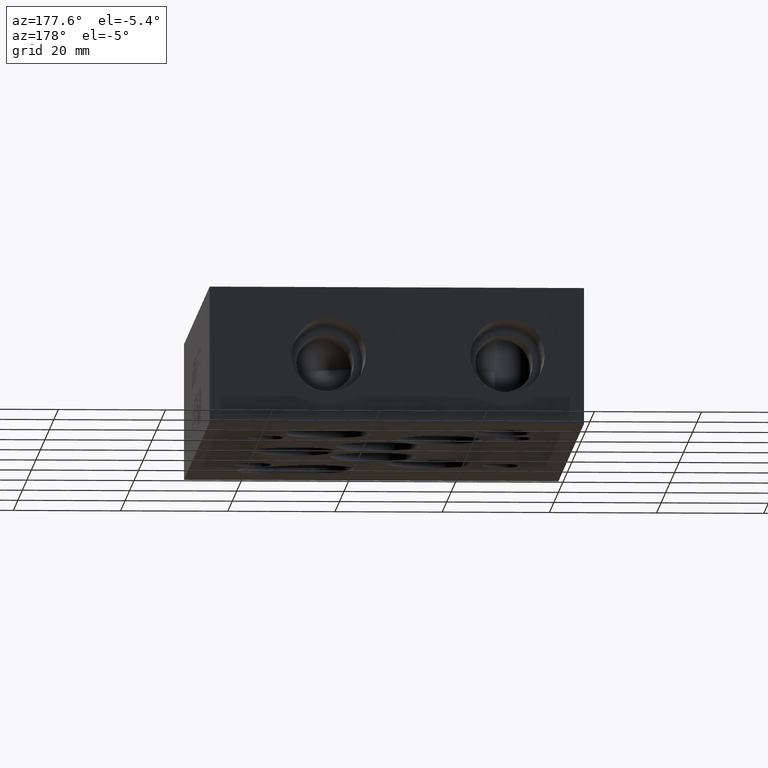
[diagram: clean part render]
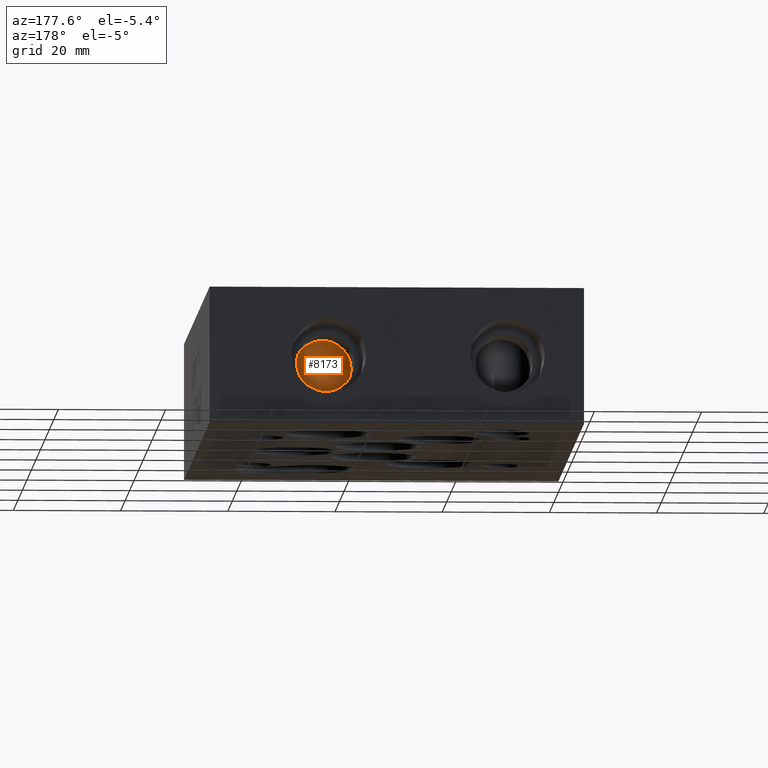
[diagram: same view with one face highlighted and labeled with its STEP entity id]
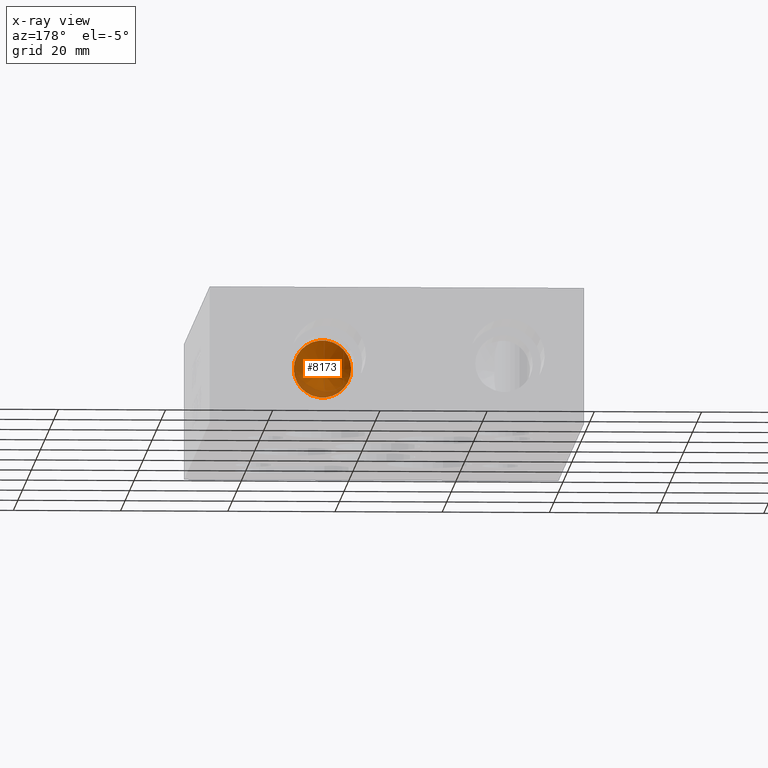
[diagram: x-ray of the same camera — body ghosted, the highlighted face saturated]
A machine part, auxiliary view. The second image highlights one B-rep face of the part: STEP entity #8173.
The next image is the same camera in x-ray: the body ghosted, the highlighted face saturated — about 12% of this face is hidden behind the body in this view.
In plain terms, the highlighted conical surface has half-angle 60 deg.
Its self-contained STEP definition (entity closure, byte-faithful):
#19=CONICAL_SURFACE('',#8599,5.3594,1.04719755577195);
#674=CIRCLE('',#8598,5.3594);
#1110=FACE_OUTER_BOUND('',#1574,.T.);
#1574=EDGE_LOOP('',(#7350,#7351,#7352));
#2510=LINE('',#13419,#3420);
#3420=VECTOR('',#10305,5.3594);
#4149=VERTEX_POINT('',#13414);
#4150=VERTEX_POINT('',#13418);
#5237=EDGE_CURVE('',#4149,#4149,#674,.T.);
#5238=EDGE_CURVE('',#4149,#4150,#2510,.T.);
#7350=ORIENTED_EDGE('',*,*,#5237,.F.);
#7351=ORIENTED_EDGE('',*,*,#5238,.T.);
#7352=ORIENTED_EDGE('',*,*,#5238,.F.);
#8173=ADVANCED_FACE('',(#1110),#19,.F.);
#8598=AXIS2_PLACEMENT_3D('',#13416,#10301,#10302);
#8599=AXIS2_PLACEMENT_3D('',#13417,#10303,#10304);
#10301=DIRECTION('center_axis',(0.,-1.,0.));
#10302=DIRECTION('ref_axis',(1.,0.,0.));
#10303=DIRECTION('center_axis',(0.,1.,0.));
#10304=DIRECTION('ref_axis',(1.,0.,0.));
#10305=DIRECTION('',(0.866025406072116,-0.499999996037627,1.0605752415265E-16));
#13414=CARTESIAN_POINT('',(42.2656,86.1775749,12.7));
#13416=CARTESIAN_POINT('Origin',(47.625,86.1775749,12.7));
#13417=CARTESIAN_POINT('Origin',(47.625,86.1775749,12.7));
#13418=CARTESIAN_POINT('',(47.625,83.0833239,12.7));
#13419=CARTESIAN_POINT('',(42.2656,86.1775749,12.7));